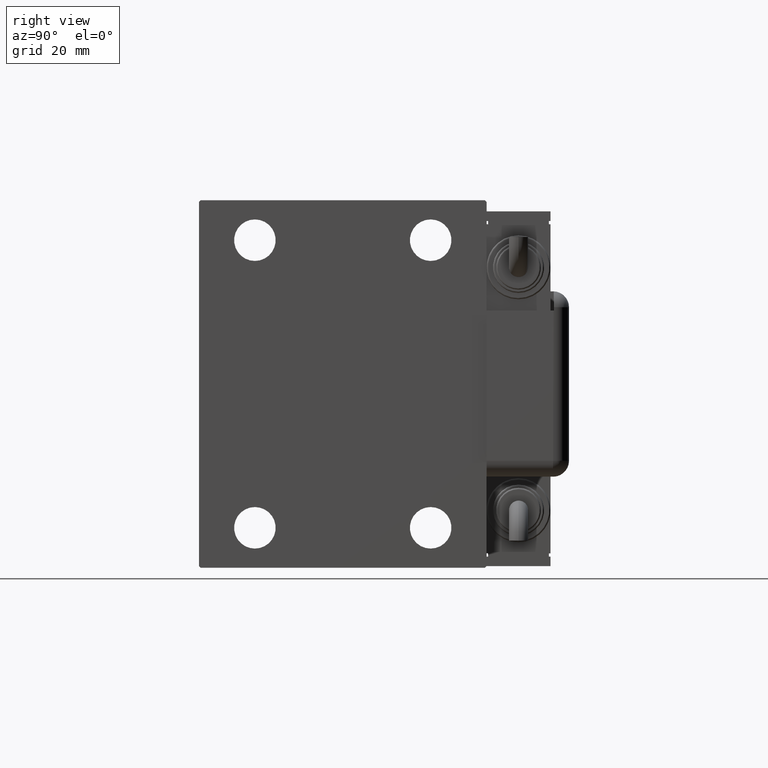
[diagram: clean part render]
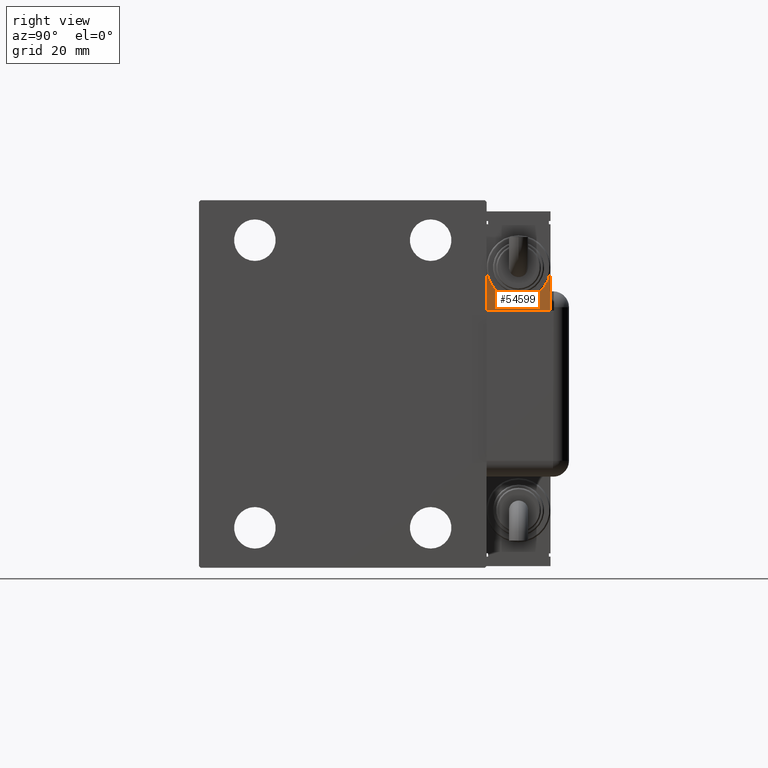
[diagram: same view with one face highlighted and labeled with its STEP entity id]
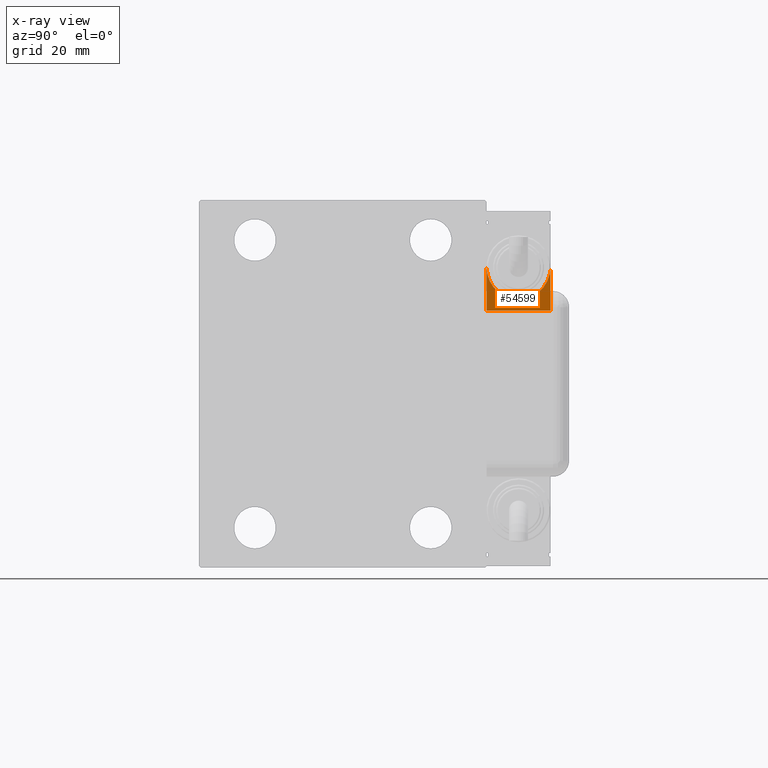
[diagram: x-ray of the same camera — body ghosted, the highlighted face saturated]
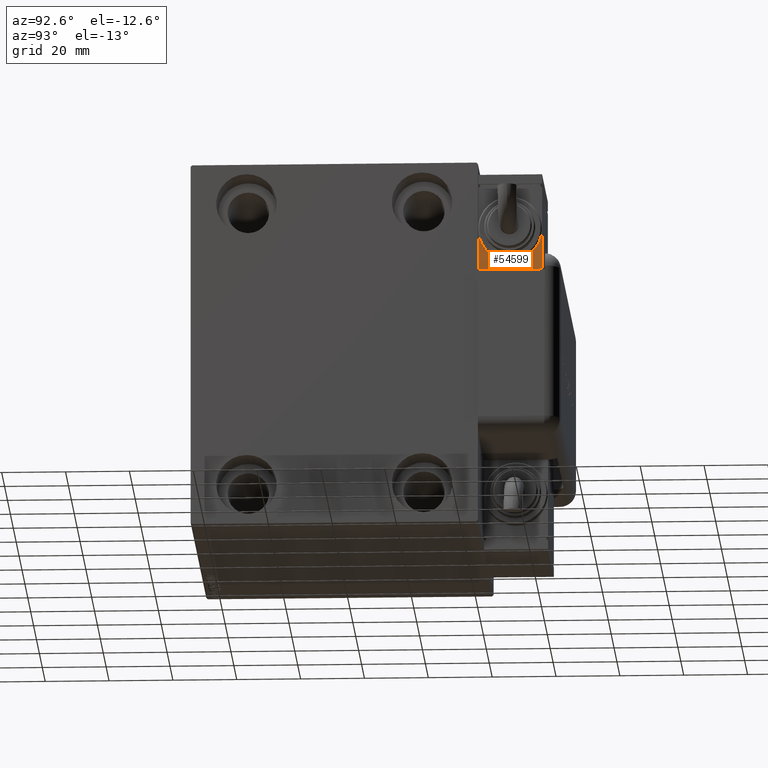
[diagram: same view with one face highlighted and labeled with its STEP entity id]
A machine part, right view. The second image highlights one B-rep face of the part: STEP entity #54599.
The next image is the same camera in x-ray: the body ghosted, the highlighted face saturated — about 0% of this face is hidden behind the body in this view.
A second angle (auxiliary view) of the same face is appended — the face is thin or edge-on in the first view.
In plain terms, the highlighted planar face has unit normal (-1, 0, 0).
Its self-contained STEP definition (entity closure, byte-faithful):
#2312 = CARTESIAN_POINT ( 'NONE',  ( -19.99999999999994316, -13.49999999999996092, 10.00000000000000000 ) ) ;
#2994 = ORIENTED_EDGE ( 'NONE', *, *, #14346, .F. ) ;
#7185 = CIRCLE ( 'NONE', #28580, 10.00000000000000000 ) ;
#7957 = ORIENTED_EDGE ( 'NONE', *, *, #54959, .T. ) ;
#9080 = CARTESIAN_POINT ( 'NONE',  ( -19.99999999999993960, 13.49999999999986500, 10.00000000000000000 ) ) ;
#9314 = EDGE_CURVE ( 'NONE', #47607, #26504, #13357, .T. ) ;
#11703 = EDGE_CURVE ( 'NONE', #32410, #26504, #32273, .T. ) ;
#11794 = VECTOR ( 'NONE', #31265, 1000.000000000000000 ) ;
#13357 = LINE ( 'NONE', #32456, #11794 ) ;
#13958 = CARTESIAN_POINT ( 'NONE',  ( -19.99999999999993960, 13.49999999999986500, -10.00000000000000000 ) ) ;
#14346 = EDGE_CURVE ( 'NONE', #43068, #17161, #18719, .T. ) ;
#16912 = DIRECTION ( 'NONE',  ( -1.000000000000000000, 1.284980352575421081E-16, 0.000000000000000000 ) ) ;
#17161 = VERTEX_POINT ( 'NONE', #20530 ) ;
#18447 = DIRECTION ( 'NONE',  ( -0.000000000000000000, -0.000000000000000000, -1.000000000000000000 ) ) ;
#18719 = LINE ( 'NONE', #54755, #40459 ) ;
#19028 = CARTESIAN_POINT ( 'NONE',  ( -19.99999999999993960, 13.49999999999986500, 10.00000000000000000 ) ) ;
#20530 = CARTESIAN_POINT ( 'NONE',  ( -19.99999999999993960, 2.569960705150834076E-15, 10.00000000000000000 ) ) ;
#26504 = VERTEX_POINT ( 'NONE', #35419 ) ;
#28580 = AXIS2_PLACEMENT_3D ( 'NONE', #30279, #16912, #44800 ) ;
#29654 = ORIENTED_EDGE ( 'NONE', *, *, #11703, .F. ) ;
#30279 = CARTESIAN_POINT ( 'NONE',  ( -19.99999999999993960, 2.569960705150834076E-15, 0.000000000000000000 ) ) ;
#31265 = DIRECTION ( 'NONE',  ( -1.284980352575421081E-16, -1.000000000000000000, -0.000000000000000000 ) ) ;
#32273 = CIRCLE ( 'NONE', #59295, 10.00000000000000000 ) ;
#32410 = VERTEX_POINT ( 'NONE', #53137 ) ;
#32456 = CARTESIAN_POINT ( 'NONE',  ( -19.99999999999994316, -13.49999999999996092, -10.00000000000000000 ) ) ;
#34730 = FACE_OUTER_BOUND ( 'NONE', #35426, .T. ) ;
#35325 = DIRECTION ( 'NONE',  ( -1.000000000000000000, 1.284980352575421081E-16, 0.000000000000000000 ) ) ;
#35419 = CARTESIAN_POINT ( 'NONE',  ( -19.99999999999993960, 2.569960705150834076E-15, -9.999999999999996447 ) ) ;
#35426 = EDGE_LOOP ( 'NONE', ( #49430, #2994, #7957, #58813, #29654 ) ) ;
#35894 = DIRECTION ( 'NONE',  ( 1.284980352575421081E-16, 1.000000000000000000, 0.000000000000000000 ) ) ;
#37543 = LINE ( 'NONE', #9080, #48137 ) ;
#39875 = DIRECTION ( 'NONE',  ( 0.000000000000000000, -1.000000000000000000, 0.000000000000000000 ) ) ;
#40459 = VECTOR ( 'NONE', #59906, 1000.000000000000000 ) ;
#43068 = VERTEX_POINT ( 'NONE', #19028 ) ;
#44800 = DIRECTION ( 'NONE',  ( 0.000000000000000000, -1.000000000000000000, 0.000000000000000000 ) ) ;
#46093 = EDGE_CURVE ( 'NONE', #17161, #32410, #7185, .T. ) ;
#47607 = VERTEX_POINT ( 'NONE', #13958 ) ;
#48137 = VECTOR ( 'NONE', #18447, 1000.000000000000000 ) ;
#49430 = ORIENTED_EDGE ( 'NONE', *, *, #46093, .F. ) ;
#53137 = CARTESIAN_POINT ( 'NONE',  ( -19.99999999999993960, 10.00000000000000178, 0.000000000000000000 ) ) ;
#53462 = DIRECTION ( 'NONE',  ( 1.000000000000000000, -1.284980352575421081E-16, 0.000000000000000000 ) ) ;
#54599 = ADVANCED_FACE ( 'NONE', ( #34730 ), #58004, .F. ) ;
#54755 = CARTESIAN_POINT ( 'NONE',  ( -19.99999999999994316, -13.49999999999996092, 10.00000000000000000 ) ) ;
#54959 = EDGE_CURVE ( 'NONE', #43068, #47607, #37543, .T. ) ;
#58004 = PLANE ( 'NONE',  #59696 ) ;
#58015 = CARTESIAN_POINT ( 'NONE',  ( -19.99999999999993960, 2.569960705150834076E-15, 0.000000000000000000 ) ) ;
#58813 = ORIENTED_EDGE ( 'NONE', *, *, #9314, .T. ) ;
#59295 = AXIS2_PLACEMENT_3D ( 'NONE', #58015, #35325, #39875 ) ;
#59696 = AXIS2_PLACEMENT_3D ( 'NONE', #2312, #53462, #35894 ) ;
#59906 = DIRECTION ( 'NONE',  ( -1.284980352575421081E-16, -1.000000000000000000, -0.000000000000000000 ) ) ;